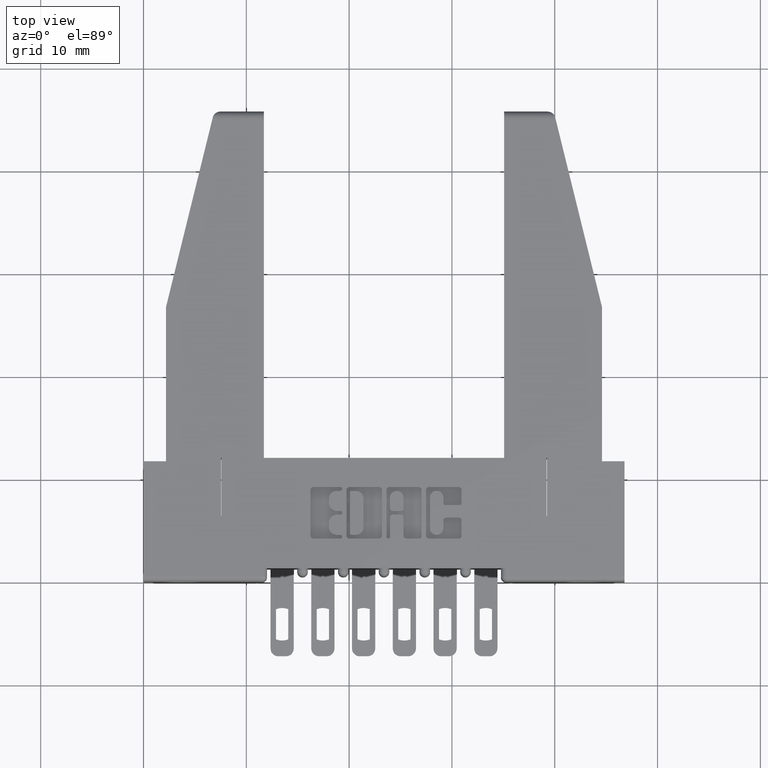
[diagram: clean part render]
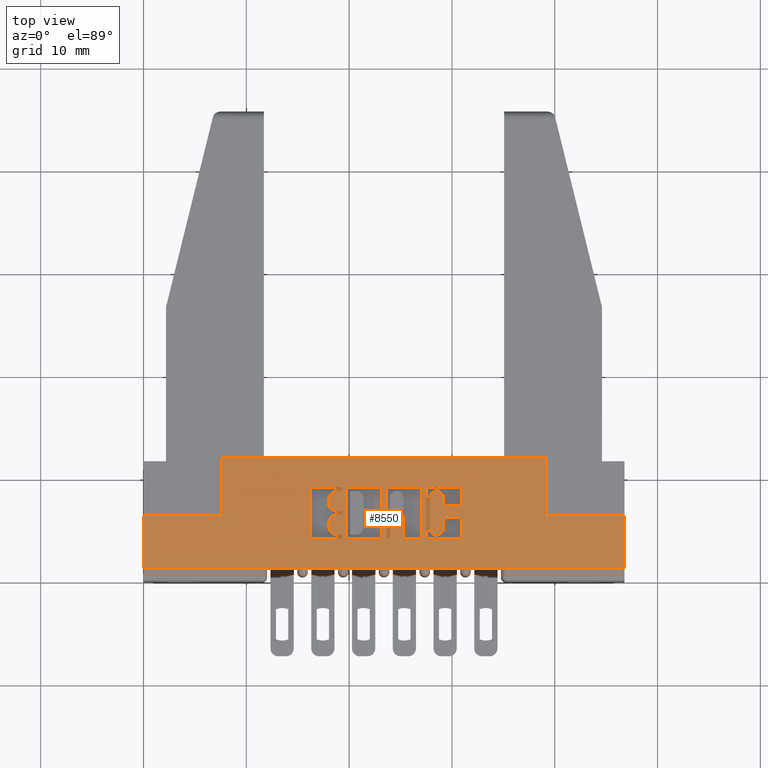
[diagram: same view with one face highlighted and labeled with its STEP entity id]
A machine part, top view. The second image highlights one B-rep face of the part: STEP entity #8550.
In plain terms, the highlighted planar face has unit normal (0, 0, -1).
Its self-contained STEP definition (entity closure, byte-faithful):
#1 = VECTOR ( 'NONE', #3861, 39.37007874015748100 ) ;
#15 = DIRECTION ( 'NONE',  ( -0.0000000000000000000, 0.0000000000000000000, 1.000000000000000000 ) ) ;
#39 = CIRCLE ( 'NONE', #3058, 0.03141014465217454400 ) ;
#63 = VERTEX_POINT ( 'NONE', #4341 ) ;
#64 = DIRECTION ( 'NONE',  ( 1.000000000000000000, 0.0000000000000000000, 0.0000000000000000000 ) ) ;
#69 = CARTESIAN_POINT ( 'NONE',  ( 0.7541336065353516600, 0.3464147637527356100, 0.0000000000000000000 ) ) ;
#77 = CARTESIAN_POINT ( 'NONE',  ( 1.055229290037014200, 0.3601567020380065400, 0.0000000000000000000 ) ) ;
#86 = ORIENTED_EDGE ( 'NONE', *, *, #10736, .F. ) ;
#88 = ORIENTED_EDGE ( 'NONE', *, *, #423, .F. ) ;
#108 = CARTESIAN_POINT ( 'NONE',  ( 0.7406370600050843400, 0.2237188862052004700, 0.0000000000000000000 ) ) ;
#148 = ORIENTED_EDGE ( 'NONE', *, *, #11169, .F. ) ;
#150 = CARTESIAN_POINT ( 'NONE',  ( 0.7092269153529097100, 0.3002811137948582800, 0.0000000000000000000 ) ) ;
#180 = CARTESIAN_POINT ( 'NONE',  ( 0.7769550397591695700, 0.0000000000000000000, 0.0000000000000000000 ) ) ;
#246 = ORIENTED_EDGE ( 'NONE', *, *, #1739, .F. ) ;
#247 = CARTESIAN_POINT ( 'NONE',  ( 0.9531463199174504700, 0.2453133606535455300, 0.0000000000000000000 ) ) ;
#263 = CARTESIAN_POINT ( 'NONE',  ( 0.9295887114283312200, 0.3503410318342100000, 0.0000000000000000000 ) ) ;
#286 = CIRCLE ( 'NONE', #11135, 0.02625691779518022500 ) ;
#293 = ORIENTED_EDGE ( 'NONE', *, *, #10682, .F. ) ;
#295 = VECTOR ( 'NONE', #8441, 39.37007874015748100 ) ;
#301 = CIRCLE ( 'NONE', #998, 0.009815670203796237100 ) ;
#330 = VECTOR ( 'NONE', #64, 39.37007874015748100 ) ;
#341 = VECTOR ( 'NONE', #5720, 39.37007874015748100 ) ;
#354 = CARTESIAN_POINT ( 'NONE',  ( 0.7541336065353102500, 0.2620000000000202700, 0.0000000000000000000 ) ) ;
#379 = LINE ( 'NONE', #9353, #10522 ) ;
#394 = CARTESIAN_POINT ( 'NONE',  ( 1.082222383097458900, 0.0000000000000000000, 0.0000000000000000000 ) ) ;
#405 = EDGE_CURVE ( 'NONE', #894, #3457, #3670, .T. ) ;
#423 = EDGE_CURVE ( 'NONE', #8359, #5198, #4515, .T. ) ;
#473 = CARTESIAN_POINT ( 'NONE',  ( -0.0000000000000000000, 0.2909562271012335900, 0.0000000000000000000 ) ) ;
#478 = VERTEX_POINT ( 'NONE', #5847 ) ;
#505 = EDGE_CURVE ( 'NONE', #9225, #8333, #4386, .T. ) ;
#515 = VERTEX_POINT ( 'NONE', #11560 ) ;
#526 = EDGE_CURVE ( 'NONE', #7064, #5642, #3958, .T. ) ;
#536 = LINE ( 'NONE', #2013, #7632 ) ;
#576 = AXIS2_PLACEMENT_3D ( 'NONE', #4195, #5265, #7120 ) ;
#605 = ORIENTED_EDGE ( 'NONE', *, *, #4342, .F. ) ;
#696 = CARTESIAN_POINT ( 'NONE',  ( 0.9531463199174504700, 0.2551290308573486200, 0.0000000000000000000 ) ) ;
#711 = CARTESIAN_POINT ( 'NONE',  ( 1.095964321382818700, 0.3201578459575295000, 0.0000000000000000000 ) ) ;
#723 = DIRECTION ( 'NONE',  ( -0.0000000000000000000, 0.0000000000000000000, 1.000000000000000000 ) ) ;
#735 = DIRECTION ( 'NONE',  ( -0.0000000000000000000, -1.000000000000000000, -0.0000000000000000000 ) ) ;
#764 = CARTESIAN_POINT ( 'NONE',  ( 1.217678631909972400, 0.0000000000000000000, 0.0000000000000000000 ) ) ;
#770 = DIRECTION ( 'NONE',  ( 1.000000000000000000, 0.0000000000000000000, 0.0000000000000000000 ) ) ;
#787 = DIRECTION ( 'NONE',  ( 1.000000000000000000, 0.0000000000000000000, 0.0000000000000000000 ) ) ;
#817 = ORIENTED_EDGE ( 'NONE', *, *, #1507, .F. ) ;
#831 = EDGE_CURVE ( 'NONE', #9751, #8333, #7861, .T. ) ;
#845 = DIRECTION ( 'NONE',  ( -0.0000000000000000000, 0.0000000000000000000, 1.000000000000000000 ) ) ;
#894 = VERTEX_POINT ( 'NONE', #11149 ) ;
#902 = DIRECTION ( 'NONE',  ( 0.0000000000000000000, -1.000000000000000000, 0.0000000000000000000 ) ) ;
#998 = AXIS2_PLACEMENT_3D ( 'NONE', #8274, #7165, #787 ) ;
#1002 = VERTEX_POINT ( 'NONE', #2892 ) ;
#1036 = VERTEX_POINT ( 'NONE', #263 ) ;
#1062 = CARTESIAN_POINT ( 'NONE',  ( 1.082222383097458900, 0.3503410318342100000, 0.0000000000000000000 ) ) ;
#1064 = CARTESIAN_POINT ( 'NONE',  ( 0.6400264404161156700, 0.3503410318342100000, 0.0000000000000000000 ) ) ;
#1072 = VECTOR ( 'NONE', #7100, 39.37007874015748100 ) ;
#1080 = CIRCLE ( 'NONE', #2582, 0.009815670203805798900 ) ;
#1100 = ORIENTED_EDGE ( 'NONE', *, *, #11801, .F. ) ;
#1104 = DIRECTION ( 'NONE',  ( -0.0000000000000000000, 0.0000000000000000000, 1.000000000000000000 ) ) ;
#1109 = CARTESIAN_POINT ( 'NONE',  ( 0.0000000000000000000, 0.3601567020380510000, 0.0000000000000000000 ) ) ;
#1184 = VECTOR ( 'NONE', #4331, 39.37007874015748100 ) ;
#1186 = DIRECTION ( 'NONE',  ( -0.0000000000000000000, 0.0000000000000000000, 1.000000000000000000 ) ) ;
#1197 = VECTOR ( 'NONE', #5762, 39.37007874015748100 ) ;
#1202 = CARTESIAN_POINT ( 'NONE',  ( 1.095964321382818700, 0.0000000000000000000, 0.0000000000000000000 ) ) ;
#1235 = CARTESIAN_POINT ( 'NONE',  ( 0.2979999999999998800, 0.4729999999999999800, 0.0000000000000000000 ) ) ;
#1246 = LINE ( 'NONE', #1938, #10806 ) ;
#1326 = CARTESIAN_POINT ( 'NONE',  ( 0.9124112885716693100, 0.1736589681657899100, 0.0000000000000000000 ) ) ;
#1359 = CARTESIAN_POINT ( 'NONE',  ( 1.207862961706168700, 0.3601567020380510000, 0.0000000000000000000 ) ) ;
#1380 = EDGE_CURVE ( 'NONE', #8781, #7950, #10732, .T. ) ;
#1473 = EDGE_CURVE ( 'NONE', #3224, #5875, #4934, .T. ) ;
#1486 = ORIENTED_EDGE ( 'NONE', *, *, #8048, .F. ) ;
#1503 = ORIENTED_EDGE ( 'NONE', *, *, #2270, .T. ) ;
#1504 = VERTEX_POINT ( 'NONE', #150 ) ;
#1505 = CARTESIAN_POINT ( 'NONE',  ( 1.148478156973166100, 0.0000000000000000000, 0.0000000000000000000 ) ) ;
#1507 = EDGE_CURVE ( 'NONE', #7143, #4625, #9580, .T. ) ;
#1513 = CARTESIAN_POINT ( 'NONE',  ( 0.7541336064153890700, 0.2551290308573567800, 0.0000000000000000000 ) ) ;
#1515 = AXIS2_PLACEMENT_3D ( 'NONE', #1542, #9091, #770 ) ;
#1542 = CARTESIAN_POINT ( 'NONE',  ( 0.7541336065353357900, 0.1707142671046479000, 0.0000000000000000000 ) ) ;
#1566 = CIRCLE ( 'NONE', #2206, 0.009815670203822599700 ) ;
#1574 = VECTOR ( 'NONE', #1804, 39.37007874015748100 ) ;
#1585 = CARTESIAN_POINT ( 'NONE',  ( 0.0000000000000000000, 0.2499999999999999700, 0.0000000000000000000 ) ) ;
#1591 = DIRECTION ( 'NONE',  ( -0.0000000000000000000, 0.0000000000000000000, 1.000000000000000000 ) ) ;
#1613 = CARTESIAN_POINT ( 'NONE',  ( 1.158293827176977600, 0.2909562271012335900, 0.0000000000000000000 ) ) ;
#1639 = VERTEX_POINT ( 'NONE', #1513 ) ;
#1653 = LINE ( 'NONE', #3152, #4982 ) ;
#1666 = CARTESIAN_POINT ( 'NONE',  ( 1.158293827176967400, 0.2433502266127574900, 0.0000000000000000000 ) ) ;
#1679 = LINE ( 'NONE', #1202, #3138 ) ;
#1691 = DIRECTION ( 'NONE',  ( -1.000000000000000000, -0.0000000000000000000, -7.017285087388212900E-023 ) ) ;
#1728 = DIRECTION ( 'NONE',  ( -1.000000000000000000, -3.427012734660361200E-014, 0.0000000000000000000 ) ) ;
#1739 = EDGE_CURVE ( 'NONE', #6816, #1639, #11901, .T. ) ;
#1757 = EDGE_CURVE ( 'NONE', #3457, #5623, #11308, .T. ) ;
#1766 = DIRECTION ( 'NONE',  ( 1.000000000000000000, 0.0000000000000000000, 0.0000000000000000000 ) ) ;
#1778 = CIRCLE ( 'NONE', #5995, 0.009815670203788042300 ) ;
#1779 = ORIENTED_EDGE ( 'NONE', *, *, #2825, .T. ) ;
#1784 = DIRECTION ( 'NONE',  ( 0.0000000000000000000, 1.000000000000000000, -0.0000000000000000000 ) ) ;
#1790 = AXIS2_PLACEMENT_3D ( 'NONE', #2309, #11440, #7835 ) ;
#1799 = DIRECTION ( 'NONE',  ( 1.000000000000000000, 0.0000000000000000000, 0.0000000000000000000 ) ) ;
#1804 = DIRECTION ( 'NONE',  ( 1.000000000000000000, 0.0000000000000000000, 0.0000000000000000000 ) ) ;
#1833 = VERTEX_POINT ( 'NONE', #3464 ) ;
#1857 = LINE ( 'NONE', #2185, #8950 ) ;
#1859 = VERTEX_POINT ( 'NONE', #11695 ) ;
#1868 = DIRECTION ( 'NONE',  ( 1.000000000000000000, 0.0000000000000000000, 0.0000000000000000000 ) ) ;
#1932 = VERTEX_POINT ( 'NONE', #9356 ) ;
#1938 = CARTESIAN_POINT ( 'NONE',  ( 0.0000000000000000000, 0.3601567020380510000, 0.0000000000000000000 ) ) ;
#1946 = CARTESIAN_POINT ( 'NONE',  ( -0.0000000000000000000, 0.1638432979619831300, 0.0000000000000000000 ) ) ;
#1947 = FACE_BOUND ( 'NONE', #8381, .T. ) ;
#1976 = DIRECTION ( 'NONE',  ( 1.000000000000000000, 0.0000000000000000000, 0.0000000000000000000 ) ) ;
#1990 = CARTESIAN_POINT ( 'NONE',  ( 0.9295887114283312200, 0.1707142671046479000, 0.0000000000000000000 ) ) ;
#2013 = CARTESIAN_POINT ( 'NONE',  ( 0.0000000000000000000, 0.3601567020380326800, 0.0000000000000000000 ) ) ;
#2031 = CIRCLE ( 'NONE', #6491, 0.03141014465215624000 ) ;
#2093 = CARTESIAN_POINT ( 'NONE',  ( 0.7092269153529097100, 0.0000000000000000000, 0.0000000000000000000 ) ) ;
#2102 = ORIENTED_EDGE ( 'NONE', *, *, #2538, .F. ) ;
#2107 = CARTESIAN_POINT ( 'NONE',  ( 1.544000000000000700, 0.4729999999999999800, 0.0000000000000000000 ) ) ;
#2137 = CARTESIAN_POINT ( 'NONE',  ( -1.072942192934067400E-015, 0.1638432979619806600, 0.0000000000000000000 ) ) ;
#2146 = CARTESIAN_POINT ( 'NONE',  ( 0.9433306497136472200, 0.0000000000000000000, 0.0000000000000000000 ) ) ;
#2161 = DIRECTION ( 'NONE',  ( -0.0000000000000000000, 0.0000000000000000000, 1.000000000000000000 ) ) ;
#2185 = CARTESIAN_POINT ( 'NONE',  ( 0.9124112885716693100, 0.0000000000000000000, 0.0000000000000000000 ) ) ;
#2206 = AXIS2_PLACEMENT_3D ( 'NONE', #3946, #1186, #9483 ) ;
#2209 = ORIENTED_EDGE ( 'NONE', *, *, #9869, .F. ) ;
#2217 = LINE ( 'NONE', #9158, #5259 ) ;
#2227 = CARTESIAN_POINT ( 'NONE',  ( -0.0000000000000000000, 0.2551290308573567800, 0.0000000000000000000 ) ) ;
#2245 = FACE_BOUND ( 'NONE', #4204, .T. ) ;
#2250 = DIRECTION ( 'NONE',  ( 1.000000000000000000, 6.548587621710595000E-015, 0.0000000000000000000 ) ) ;
#2252 = ORIENTED_EDGE ( 'NONE', *, *, #6804, .F. ) ;
#2264 = PLANE ( 'NONE',  #8459 ) ;
#2270 = EDGE_CURVE ( 'NONE', #10447, #10559, #3196, .T. ) ;
#2284 = AXIS2_PLACEMENT_3D ( 'NONE', #8773, #8167, #11939 ) ;
#2294 = EDGE_CURVE ( 'NONE', #3735, #8912, #8693, .T. ) ;
#2296 = VECTOR ( 'NONE', #8555, 39.37007874015748100 ) ;
#2309 = CARTESIAN_POINT ( 'NONE',  ( 1.207862961706153400, 0.2335345564089703600, 0.0000000000000000000 ) ) ;
#2333 = EDGE_CURVE ( 'NONE', #3224, #63, #10849, .T. ) ;
#2352 = DIRECTION ( 'NONE',  ( 1.000000000000000000, 0.0000000000000000000, 0.0000000000000000000 ) ) ;
#2401 = CARTESIAN_POINT ( 'NONE',  ( 1.158293827176977600, 0.3007718973050451700, 0.0000000000000000000 ) ) ;
#2443 = VECTOR ( 'NONE', #10098, 39.37007874015748100 ) ;
#2445 = EDGE_CURVE ( 'NONE', #3013, #1859, #9844, .T. ) ;
#2452 = CARTESIAN_POINT ( 'NONE',  ( -0.0000000000000000000, 0.3464147637527356100, 0.0000000000000000000 ) ) ;
#2457 = CARTESIAN_POINT ( 'NONE',  ( 0.0000000000000000000, 0.2688709691426837700, 0.0000000000000000000 ) ) ;
#2538 = EDGE_CURVE ( 'NONE', #3198, #5581, #10148, .T. ) ;
#2578 = CARTESIAN_POINT ( 'NONE',  ( -8.743304377295779200E-015, 0.2551290308573159200, 0.0000000000000000000 ) ) ;
#2579 = DIRECTION ( 'NONE',  ( 1.000000000000000000, 0.0000000000000000000, 0.0000000000000000000 ) ) ;
#2582 = AXIS2_PLACEMENT_3D ( 'NONE', #4060, #2993, #9464 ) ;
#2616 = AXIS2_PLACEMENT_3D ( 'NONE', #8956, #3345, #7285 ) ;
#2673 = ORIENTED_EDGE ( 'NONE', *, *, #8957, .F. ) ;
#2710 = CIRCLE ( 'NONE', #3966, 0.009815670203796511200 ) ;
#2731 = AXIS2_PLACEMENT_3D ( 'NONE', #3688, #10088, #4799 ) ;
#2749 = AXIS2_PLACEMENT_3D ( 'NONE', #6738, #2161, #9614 ) ;
#2825 = EDGE_CURVE ( 'NONE', #10559, #3013, #7955, .T. ) ;
#2864 = ORIENTED_EDGE ( 'NONE', *, *, #11621, .F. ) ;
#2877 = DIRECTION ( 'NONE',  ( -0.0000000000000000000, 0.0000000000000000000, 1.000000000000000000 ) ) ;
#2881 = EDGE_CURVE ( 'NONE', #10398, #3587, #9095, .T. ) ;
#2892 = CARTESIAN_POINT ( 'NONE',  ( 0.7092269153529097100, 0.3150046191005197400, 0.0000000000000000000 ) ) ;
#2911 = ORIENTED_EDGE ( 'NONE', *, *, #405, .F. ) ;
#2993 = DIRECTION ( 'NONE',  ( -0.0000000000000000000, 0.0000000000000000000, 1.000000000000000000 ) ) ;
#3007 = ORIENTED_EDGE ( 'NONE', *, *, #11669, .F. ) ;
#3013 = VERTEX_POINT ( 'NONE', #8490 ) ;
#3031 = DIRECTION ( 'NONE',  ( 0.0000000000000000000, 1.000000000000000000, -0.0000000000000000000 ) ) ;
#3033 = LINE ( 'NONE', #4534, #6484 ) ;
#3050 = DIRECTION ( 'NONE',  ( -0.0000000000000000000, 0.0000000000000000000, 1.000000000000000000 ) ) ;
#3053 = ORIENTED_EDGE ( 'NONE', *, *, #1757, .F. ) ;
#3058 = AXIS2_PLACEMENT_3D ( 'NONE', #6566, #9183, #6604 ) ;
#3060 = CARTESIAN_POINT ( 'NONE',  ( 0.6400264404161156700, 0.0000000000000000000, 0.0000000000000000000 ) ) ;
#3083 = EDGE_CURVE ( 'NONE', #6829, #9136, #3450, .T. ) ;
#3097 = CARTESIAN_POINT ( 'NONE',  ( 0.6498421106199189200, 0.1638432979619849400, 0.0000000000000000000 ) ) ;
#3112 = EDGE_CURVE ( 'NONE', #5537, #5991, #8804, .T. ) ;
#3123 = AXIS2_PLACEMENT_3D ( 'NONE', #11862, #723, #10837 ) ;
#3126 = FACE_OUTER_BOUND ( 'NONE', #7316, .T. ) ;
#3138 = VECTOR ( 'NONE', #3031, 39.37007874015748100 ) ;
#3152 = CARTESIAN_POINT ( 'NONE',  ( 0.2979999999999999900, 0.2499999999999999700, 0.0000000000000000000 ) ) ;
#3156 = DIRECTION ( 'NONE',  ( 0.0000000000000000000, 1.000000000000000000, -0.0000000000000000000 ) ) ;
#3196 = LINE ( 'NONE', #2578, #3478 ) ;
#3198 = VERTEX_POINT ( 'NONE', #1359 ) ;
#3224 = VERTEX_POINT ( 'NONE', #11645 ) ;
#3247 = LINE ( 'NONE', #3060, #9899 ) ;
#3320 = ORIENTED_EDGE ( 'NONE', *, *, #6299, .F. ) ;
#3339 = LINE ( 'NONE', #9108, #11896 ) ;
#3345 = DIRECTION ( 'NONE',  ( -0.0000000000000000000, 0.0000000000000000000, 1.000000000000000000 ) ) ;
#3380 = EDGE_CURVE ( 'NONE', #3453, #4625, #286, .T. ) ;
#3398 = LINE ( 'NONE', #9824, #7890 ) ;
#3403 = VERTEX_POINT ( 'NONE', #6409 ) ;
#3429 = EDGE_CURVE ( 'NONE', #7094, #10248, #3033, .T. ) ;
#3430 = DIRECTION ( 'NONE',  ( -0.0000000000000000000, 0.0000000000000000000, 1.000000000000000000 ) ) ;
#3450 = CIRCLE ( 'NONE', #10300, 0.009815670203806891800 ) ;
#3453 = VERTEX_POINT ( 'NONE', #3744 ) ;
#3457 = VERTEX_POINT ( 'NONE', #10266 ) ;
#3464 = CARTESIAN_POINT ( 'NONE',  ( 0.7406370600051257500, 0.3464147637527356100, 0.0000000000000000000 ) ) ;
#3478 = VECTOR ( 'NONE', #1728, 39.37007874015748100 ) ;
#3523 = CARTESIAN_POINT ( 'NONE',  ( 1.207862961706132300, 0.3503410318342108900, 0.0000000000000000000 ) ) ;
#3535 = ORIENTED_EDGE ( 'NONE', *, *, #8321, .F. ) ;
#3540 = EDGE_CURVE ( 'NONE', #9457, #4879, #10840, .T. ) ;
#3551 = CIRCLE ( 'NONE', #7793, 0.009815670203840084000 ) ;
#3565 = DIRECTION ( 'NONE',  ( -1.000000000000000000, 0.0000000000000000000, 0.0000000000000000000 ) ) ;
#3567 = CARTESIAN_POINT ( 'NONE',  ( -0.0000000000000000000, 0.3601567020380065400, 0.0000000000000000000 ) ) ;
#3572 = AXIS2_PLACEMENT_3D ( 'NONE', #3725, #3603, #1799 ) ;
#3580 = CIRCLE ( 'NONE', #7688, 0.009815670203795690700 ) ;
#3587 = VERTEX_POINT ( 'NONE', #4813 ) ;
#3598 = EDGE_CURVE ( 'NONE', #4717, #5445, #1566, .T. ) ;
#3603 = DIRECTION ( 'NONE',  ( -0.0000000000000000000, 0.0000000000000000000, 1.000000000000000000 ) ) ;
#3640 = CARTESIAN_POINT ( 'NONE',  ( 0.7541336065353515500, 0.3532857328953861700, 0.0000000000000000000 ) ) ;
#3643 = EDGE_CURVE ( 'NONE', #9136, #478, #1857, .T. ) ;
#3658 = LINE ( 'NONE', #1585, #1184 ) ;
#3670 = LINE ( 'NONE', #180, #1197 ) ;
#3671 = LINE ( 'NONE', #6473, #8723 ) ;
#3688 = CARTESIAN_POINT ( 'NONE',  ( 1.005660155507788200, 0.1736589681657878000, 0.0000000000000000000 ) ) ;
#3725 = CARTESIAN_POINT ( 'NONE',  ( 1.092038053301265700, 0.1736589681657899100, 0.0000000000000000000 ) ) ;
#3731 = ORIENTED_EDGE ( 'NONE', *, *, #1473, .T. ) ;
#3735 = VERTEX_POINT ( 'NONE', #8857 ) ;
#3744 = CARTESIAN_POINT ( 'NONE',  ( 1.095964321382818700, 0.2038421540424529300, 0.0000000000000000000 ) ) ;
#3793 = DIRECTION ( 'NONE',  ( -0.0000000000000000000, 0.0000000000000000000, 1.000000000000000000 ) ) ;
#3803 = VERTEX_POINT ( 'NONE', #6882 ) ;
#3811 = CARTESIAN_POINT ( 'NONE',  ( 0.2979999999999999900, 0.2499999999999999700, 0.0000000000000000000 ) ) ;
#3826 = CARTESIAN_POINT ( 'NONE',  ( 1.842000000000000700, 0.4729999999999999800, 0.0000000000000000000 ) ) ;
#3829 = LINE ( 'NONE', #10913, #1072 ) ;
#3849 = VECTOR ( 'NONE', #902, 39.37007874015748100 ) ;
#3861 = DIRECTION ( 'NONE',  ( 0.0000000000000000000, 1.000000000000000000, -0.0000000000000000000 ) ) ;
#3884 = ORIENTED_EDGE ( 'NONE', *, *, #2333, .F. ) ;
#3935 = VERTEX_POINT ( 'NONE', #7113 ) ;
#3946 = CARTESIAN_POINT ( 'NONE',  ( 0.6498421106199383500, 0.3503410318342100000, 0.0000000000000000000 ) ) ;
#3958 = CIRCLE ( 'NONE', #1790, 0.009815670203787086500 ) ;
#3966 = AXIS2_PLACEMENT_3D ( 'NONE', #11550, #10645, #6950 ) ;
#3996 = ORIENTED_EDGE ( 'NONE', *, *, #11109, .T. ) ;
#4021 = LINE ( 'NONE', #2452, #11098 ) ;
#4024 = AXIS2_PLACEMENT_3D ( 'NONE', #2401, #845, #5280 ) ;
#4060 = CARTESIAN_POINT ( 'NONE',  ( 0.6498421106199224800, 0.1736589681657899100, 0.0000000000000000000 ) ) ;
#4089 = CIRCLE ( 'NONE', #4024, 0.009815670203811535700 ) ;
#4118 = ORIENTED_EDGE ( 'NONE', *, *, #8204, .T. ) ;
#4119 = EDGE_CURVE ( 'NONE', #1833, #1002, #6618, .T. ) ;
#4132 = LINE ( 'NONE', #473, #5867 ) ;
#4195 = CARTESIAN_POINT ( 'NONE',  ( 0.7867707099630104600, 0.3503410318342100000, 0.0000000000000000000 ) ) ;
#4204 = EDGE_LOOP ( 'NONE', ( #2864, #8927, #10277, #4738, #3053, #2911, #10334, #11824 ) ) ;
#4248 = CIRCLE ( 'NONE', #576, 0.009815670203840902800 ) ;
#4270 = ORIENTED_EDGE ( 'NONE', *, *, #3540, .F. ) ;
#4311 = CARTESIAN_POINT ( 'NONE',  ( 1.207862961706167400, 0.3007718973050385600, 0.0000000000000000000 ) ) ;
#4326 = ORIENTED_EDGE ( 'NONE', *, *, #10551, .F. ) ;
#4331 = DIRECTION ( 'NONE',  ( 1.000000000000000000, -0.0000000000000000000, 0.0000000000000000000 ) ) ;
#4339 = CARTESIAN_POINT ( 'NONE',  ( 1.207862961706156900, 0.2433502266127574900, 0.0000000000000000000 ) ) ;
#4341 = CARTESIAN_POINT ( 'NONE',  ( 0.7092269153529280300, 0.2237188862052004700, 0.0000000000000000000 ) ) ;
#4342 = EDGE_CURVE ( 'NONE', #11666, #5693, #8505, .T. ) ;
#4343 = LINE ( 'NONE', #11097, #1 ) ;
#4359 = DIRECTION ( 'NONE',  ( 1.000000000000000000, 0.0000000000000000000, 0.0000000000000000000 ) ) ;
#4366 = VECTOR ( 'NONE', #7137, 39.37007874015748100 ) ;
#4386 = LINE ( 'NONE', #8521, #6975 ) ;
#4409 = ORIENTED_EDGE ( 'NONE', *, *, #11131, .T. ) ;
#4413 = ORIENTED_EDGE ( 'NONE', *, *, #6624, .T. ) ;
#4468 = CARTESIAN_POINT ( 'NONE',  ( 1.122221239177992400, 0.3201578459575295000, 0.0000000000000000000 ) ) ;
#4512 = EDGE_CURVE ( 'NONE', #3587, #4643, #4089, .T. ) ;
#4515 = LINE ( 'NONE', #3826, #10337 ) ;
#4534 = CARTESIAN_POINT ( 'NONE',  ( 0.9958444853039849500, 0.0000000000000000000, 0.0000000000000000000 ) ) ;
#4540 = CIRCLE ( 'NONE', #2731, 0.009815670203803340800 ) ;
#4542 = DIRECTION ( 'NONE',  ( -0.0000000000000000000, 0.0000000000000000000, 1.000000000000000000 ) ) ;
#4544 = CARTESIAN_POINT ( 'NONE',  ( 0.7610045756779980600, 0.1707142671046479000, 0.0000000000000000000 ) ) ;
#4572 = CARTESIAN_POINT ( 'NONE',  ( 1.122221239177999100, 0.2038421540424529300, 0.0000000000000000000 ) ) ;
#4590 = EDGE_CURVE ( 'NONE', #8149, #1932, #11174, .T. ) ;
#4600 = DIRECTION ( 'NONE',  ( -0.0000000000000000000, 0.0000000000000000000, 1.000000000000000000 ) ) ;
#4602 = AXIS2_PLACEMENT_3D ( 'NONE', #3640, #4542, #11028 ) ;
#4606 = CARTESIAN_POINT ( 'NONE',  ( 0.7406370600051257500, 0.3150046191005197400, 0.0000000000000000000 ) ) ;
#4625 = VERTEX_POINT ( 'NONE', #6266 ) ;
#4643 = VERTEX_POINT ( 'NONE', #1613 ) ;
#4672 = VERTEX_POINT ( 'NONE', #69 ) ;
#4698 = EDGE_CURVE ( 'NONE', #6816, #63, #2031, .T. ) ;
#4717 = VERTEX_POINT ( 'NONE', #9284 ) ;
#4738 = ORIENTED_EDGE ( 'NONE', *, *, #11547, .F. ) ;
#4742 = DIRECTION ( 'NONE',  ( 0.0000000000000000000, -1.000000000000000000, 0.0000000000000000000 ) ) ;
#4795 = ORIENTED_EDGE ( 'NONE', *, *, #3112, .F. ) ;
#4799 = DIRECTION ( 'NONE',  ( 1.000000000000000000, 0.0000000000000000000, 0.0000000000000000000 ) ) ;
#4813 = CARTESIAN_POINT ( 'NONE',  ( 1.148478156973166100, 0.3007718973050451700, 0.0000000000000000000 ) ) ;
#4822 = DIRECTION ( 'NONE',  ( -0.0000000000000000000, -1.000000000000000000, -0.0000000000000000000 ) ) ;
#4879 = VERTEX_POINT ( 'NONE', #11409 ) ;
#4933 = DIRECTION ( 'NONE',  ( -1.000000000000000000, 0.0000000000000000000, 0.0000000000000000000 ) ) ;
#4934 = CIRCLE ( 'NONE', #9804, 0.03141014465218178200 ) ;
#4982 = VECTOR ( 'NONE', #11419, 39.37007874015748100 ) ;
#5159 = CIRCLE ( 'NONE', #3572, 0.009815670203806754800 ) ;
#5172 = DIRECTION ( 'NONE',  ( 0.0000000000000000000, -1.000000000000000000, 0.0000000000000000000 ) ) ;
#5198 = VERTEX_POINT ( 'NONE', #7994 ) ;
#5221 = CARTESIAN_POINT ( 'NONE',  ( 0.7541336064154146000, 0.1638432979619856000, 0.0000000000000000000 ) ) ;
#5228 = DIRECTION ( 'NONE',  ( 1.000000000000000000, 0.0000000000000000000, 0.0000000000000000000 ) ) ;
#5231 = EDGE_CURVE ( 'NONE', #9225, #8359, #3339, .T. ) ;
#5233 = DIRECTION ( 'NONE',  ( -0.0000000000000000000, 0.0000000000000000000, 1.000000000000000000 ) ) ;
#5247 = EDGE_CURVE ( 'NONE', #3403, #10234, #301, .T. ) ;
#5249 = ORIENTED_EDGE ( 'NONE', *, *, #4512, .F. ) ;
#5259 = VECTOR ( 'NONE', #11156, 39.37007874015748100 ) ;
#5265 = DIRECTION ( 'NONE',  ( -0.0000000000000000000, 0.0000000000000000000, 1.000000000000000000 ) ) ;
#5280 = DIRECTION ( 'NONE',  ( 1.000000000000000000, 0.0000000000000000000, 0.0000000000000000000 ) ) ;
#5287 = LINE ( 'NONE', #6445, #3849 ) ;
#5376 = CARTESIAN_POINT ( 'NONE',  ( 1.055229290037011900, 0.3503410318342102800, 0.0000000000000000000 ) ) ;
#5390 = EDGE_CURVE ( 'NONE', #11589, #1036, #4343, .T. ) ;
#5406 = CIRCLE ( 'NONE', #6313, 0.009815670203806345400 ) ;
#5445 = VERTEX_POINT ( 'NONE', #1064 ) ;
#5447 = VECTOR ( 'NONE', #2250, 39.37007874015748100 ) ;
#5451 = DIRECTION ( 'NONE',  ( -0.0000000000000000000, 0.0000000000000000000, 1.000000000000000000 ) ) ;
#5510 = DIRECTION ( 'NONE',  ( 1.000000000000000000, 0.0000000000000000000, 0.0000000000000000000 ) ) ;
#5537 = VERTEX_POINT ( 'NONE', #10417 ) ;
#5560 = ORIENTED_EDGE ( 'NONE', *, *, #6154, .F. ) ;
#5581 = VERTEX_POINT ( 'NONE', #8022 ) ;
#5590 = ORIENTED_EDGE ( 'NONE', *, *, #5863, .F. ) ;
#5623 = VERTEX_POINT ( 'NONE', #8942 ) ;
#5642 = VERTEX_POINT ( 'NONE', #4339 ) ;
#5649 = DIRECTION ( 'NONE',  ( 1.000000000000000000, 0.0000000000000000000, 0.0000000000000000000 ) ) ;
#5674 = ORIENTED_EDGE ( 'NONE', *, *, #5390, .T. ) ;
#5693 = VERTEX_POINT ( 'NONE', #5221 ) ;
#5720 = DIRECTION ( 'NONE',  ( 1.000000000000000000, 0.0000000000000000000, 0.0000000000000000000 ) ) ;
#5731 = ORIENTED_EDGE ( 'NONE', *, *, #831, .F. ) ;
#5755 = CARTESIAN_POINT ( 'NONE',  ( 1.842000000000000700, 0.2499999999999999700, 0.0000000000000000000 ) ) ;
#5762 = DIRECTION ( 'NONE',  ( 0.0000000000000000000, -1.000000000000000000, 0.0000000000000000000 ) ) ;
#5766 = VERTEX_POINT ( 'NONE', #11980 ) ;
#5768 = VERTEX_POINT ( 'NONE', #7511 ) ;
#5780 = ORIENTED_EDGE ( 'NONE', *, *, #10109, .T. ) ;
#5847 = CARTESIAN_POINT ( 'NONE',  ( 0.9124112885716693100, 0.3503410318342100000, 0.0000000000000000000 ) ) ;
#5851 = DIRECTION ( 'NONE',  ( 0.0000000000000000000, -1.000000000000000000, 0.0000000000000000000 ) ) ;
#5863 = EDGE_CURVE ( 'NONE', #11589, #1859, #6796, .T. ) ;
#5867 = VECTOR ( 'NONE', #8881, 39.37007874015748100 ) ;
#5875 = VERTEX_POINT ( 'NONE', #11878 ) ;
#5990 = CIRCLE ( 'NONE', #1515, 0.006870969142662229500 ) ;
#5991 = VERTEX_POINT ( 'NONE', #7591 ) ;
#5995 = AXIS2_PLACEMENT_3D ( 'NONE', #10660, #6045, #5228 ) ;
#5998 = DIRECTION ( 'NONE',  ( -1.000000000000000000, 0.0000000000000000000, -0.0000000000000000000 ) ) ;
#6017 = DIRECTION ( 'NONE',  ( -1.000000000000000000, 0.0000000000000000000, 0.0000000000000000000 ) ) ;
#6027 = ORIENTED_EDGE ( 'NONE', *, *, #7506, .F. ) ;
#6045 = DIRECTION ( 'NONE',  ( -0.0000000000000000000, 0.0000000000000000000, 1.000000000000000000 ) ) ;
#6132 = VERTEX_POINT ( 'NONE', #6784 ) ;
#6154 = EDGE_CURVE ( 'NONE', #10090, #7616, #9092, .T. ) ;
#6177 = ORIENTED_EDGE ( 'NONE', *, *, #7906, .F. ) ;
#6207 = ORIENTED_EDGE ( 'NONE', *, *, #1380, .F. ) ;
#6210 = CARTESIAN_POINT ( 'NONE',  ( 1.217678631909972400, 0.3007718973050385600, 0.0000000000000000000 ) ) ;
#6266 = CARTESIAN_POINT ( 'NONE',  ( 1.148478156973179200, 0.2038421540424529300, 0.0000000000000000000 ) ) ;
#6280 = CIRCLE ( 'NONE', #3123, 0.006870969142663458500 ) ;
#6293 = VECTOR ( 'NONE', #3156, 39.37007874015748100 ) ;
#6299 = EDGE_CURVE ( 'NONE', #4672, #8781, #10836, .T. ) ;
#6306 = FACE_BOUND ( 'NONE', #9155, .T. ) ;
#6313 = AXIS2_PLACEMENT_3D ( 'NONE', #8259, #4600, #2579 ) ;
#6409 = CARTESIAN_POINT ( 'NONE',  ( 1.055229290037010800, 0.1638432979619845200, 0.0000000000000000000 ) ) ;
#6445 = CARTESIAN_POINT ( 'NONE',  ( 1.065044960240807000, 0.0000000000000000000, 0.0000000000000000000 ) ) ;
#6450 = CARTESIAN_POINT ( 'NONE',  ( 0.0000000000000000000, 0.4729999999999999800, 0.0000000000000000000 ) ) ;
#6473 = CARTESIAN_POINT ( 'NONE',  ( 0.4729999999999998600, 0.05099999999999999700, 0.0000000000000000000 ) ) ;
#6484 = VECTOR ( 'NONE', #1784, 39.37007874015748100 ) ;
#6491 = AXIS2_PLACEMENT_3D ( 'NONE', #108, #3793, #5649 ) ;
#6516 = AXIS2_PLACEMENT_3D ( 'NONE', #10864, #15, #10020 ) ;
#6531 = VECTOR ( 'NONE', #4742, 39.37007874015748100 ) ;
#6561 = AXIS2_PLACEMENT_3D ( 'NONE', #6648, #1104, #1868 ) ;
#6566 = CARTESIAN_POINT ( 'NONE',  ( 0.7406370600050843400, 0.3002811137948582800, 0.0000000000000000000 ) ) ;
#6604 = DIRECTION ( 'NONE',  ( 1.000000000000000000, 0.0000000000000000000, 0.0000000000000000000 ) ) ;
#6618 = CIRCLE ( 'NONE', #11859, 0.03141014465221592800 ) ;
#6624 = EDGE_CURVE ( 'NONE', #10248, #10447, #7935, .T. ) ;
#6646 = ORIENTED_EDGE ( 'NONE', *, *, #7174, .F. ) ;
#6648 = CARTESIAN_POINT ( 'NONE',  ( 0.7541336065353357900, 0.1707142671046479000, 0.0000000000000000000 ) ) ;
#6721 = ORIENTED_EDGE ( 'NONE', *, *, #10643, .T. ) ;
#6728 = CARTESIAN_POINT ( 'NONE',  ( 0.9860288151001880300, 0.2453133606535527200, 0.0000000000000000000 ) ) ;
#6738 = CARTESIAN_POINT ( 'NONE',  ( 0.9025956183678282000, 0.3503410318342098900, 0.0000000000000000000 ) ) ;
#6784 = CARTESIAN_POINT ( 'NONE',  ( 1.005660155507786000, 0.1638432979619845200, 0.0000000000000000000 ) ) ;
#6796 = CIRCLE ( 'NONE', #6516, 0.006870969142657995000 ) ;
#6801 = ORIENTED_EDGE ( 'NONE', *, *, #11406, .F. ) ;
#6804 = EDGE_CURVE ( 'NONE', #5768, #1036, #2710, .T. ) ;
#6816 = VERTEX_POINT ( 'NONE', #8826 ) ;
#6829 = VERTEX_POINT ( 'NONE', #7747 ) ;
#6881 = VERTEX_POINT ( 'NONE', #8021 ) ;
#6882 = CARTESIAN_POINT ( 'NONE',  ( 1.065044960240807000, 0.3503410318342009600, 0.0000000000000000000 ) ) ;
#6894 = DIRECTION ( 'NONE',  ( 0.0000000000000000000, -1.000000000000000000, 0.0000000000000000000 ) ) ;
#6943 = VECTOR ( 'NONE', #9800, 39.37007874015748100 ) ;
#6950 = DIRECTION ( 'NONE',  ( 1.000000000000000000, 0.0000000000000000000, 0.0000000000000000000 ) ) ;
#6968 = CARTESIAN_POINT ( 'NONE',  ( 0.7541336065353515500, 0.3601567020380326800, 0.0000000000000000000 ) ) ;
#6975 = VECTOR ( 'NONE', #10389, 39.37007874015748100 ) ;
#6980 = EDGE_CURVE ( 'NONE', #3803, #10893, #3580, .T. ) ;
#7021 = VERTEX_POINT ( 'NONE', #10967 ) ;
#7042 = VERTEX_POINT ( 'NONE', #3811 ) ;
#7064 = VERTEX_POINT ( 'NONE', #10017 ) ;
#7094 = VERTEX_POINT ( 'NONE', #11177 ) ;
#7096 = DIRECTION ( 'NONE',  ( -0.0000000000000000000, 0.0000000000000000000, 1.000000000000000000 ) ) ;
#7100 = DIRECTION ( 'NONE',  ( 1.000000000000000000, 0.0000000000000000000, 0.0000000000000000000 ) ) ;
#7113 = CARTESIAN_POINT ( 'NONE',  ( 0.7406370600050843400, 0.2688709691426837700, 0.0000000000000000000 ) ) ;
#7114 = CARTESIAN_POINT ( 'NONE',  ( 0.7867707099629762700, 0.1736589681657899100, 0.0000000000000000000 ) ) ;
#7120 = DIRECTION ( 'NONE',  ( 1.000000000000000000, 0.0000000000000000000, 0.0000000000000000000 ) ) ;
#7133 = DIRECTION ( 'NONE',  ( -1.000000000000000000, -1.189163988687022500E-013, 0.0000000000000000000 ) ) ;
#7137 = DIRECTION ( 'NONE',  ( 0.0000000000000000000, 1.000000000000000000, -0.0000000000000000000 ) ) ;
#7143 = VERTEX_POINT ( 'NONE', #9596 ) ;
#7165 = DIRECTION ( 'NONE',  ( -0.0000000000000000000, 0.0000000000000000000, 1.000000000000000000 ) ) ;
#7174 = EDGE_CURVE ( 'NONE', #7950, #4717, #536, .T. ) ;
#7197 = CARTESIAN_POINT ( 'NONE',  ( 0.7092269153529280300, 0.0000000000000000000, 0.0000000000000000000 ) ) ;
#7282 = ORIENTED_EDGE ( 'NONE', *, *, #2294, .T. ) ;
#7285 = DIRECTION ( 'NONE',  ( 1.000000000000000000, 0.0000000000000000000, 0.0000000000000000000 ) ) ;
#7314 = ORIENTED_EDGE ( 'NONE', *, *, #2881, .F. ) ;
#7316 = EDGE_LOOP ( 'NONE', ( #86, #88, #9512, #11102, #5731, #8031, #4326, #7282 ) ) ;
#7439 = ORIENTED_EDGE ( 'NONE', *, *, #7580, .F. ) ;
#7506 = EDGE_CURVE ( 'NONE', #1833, #4672, #4021, .T. ) ;
#7511 = CARTESIAN_POINT ( 'NONE',  ( 0.9394043816321276900, 0.3601567020380065400, 0.0000000000000000000 ) ) ;
#7549 = AXIS2_PLACEMENT_3D ( 'NONE', #7114, #1591, #8223 ) ;
#7552 = AXIS2_PLACEMENT_3D ( 'NONE', #4468, #7096, #4359 ) ;
#7580 = EDGE_CURVE ( 'NONE', #7616, #7755, #5159, .T. ) ;
#7587 = DIRECTION ( 'NONE',  ( 1.000000000000000000, 0.0000000000000000000, 0.0000000000000000000 ) ) ;
#7591 = CARTESIAN_POINT ( 'NONE',  ( 0.7541336065353102500, 0.2688709691426837700, 0.0000000000000000000 ) ) ;
#7601 = CARTESIAN_POINT ( 'NONE',  ( 0.0000000000000000000, 0.05099999999999999700, 0.0000000000000000000 ) ) ;
#7616 = VERTEX_POINT ( 'NONE', #11042 ) ;
#7632 = VECTOR ( 'NONE', #4933, 39.37007874015748100 ) ;
#7688 = AXIS2_PLACEMENT_3D ( 'NONE', #5376, #2877, #8463 ) ;
#7747 = CARTESIAN_POINT ( 'NONE',  ( 0.9025956183678624000, 0.1638432979619831300, 0.0000000000000000000 ) ) ;
#7755 = VERTEX_POINT ( 'NONE', #11248 ) ;
#7793 = AXIS2_PLACEMENT_3D ( 'NONE', #3523, #5451, #1766 ) ;
#7835 = DIRECTION ( 'NONE',  ( 1.000000000000000000, 0.0000000000000000000, 0.0000000000000000000 ) ) ;
#7861 = LINE ( 'NONE', #6450, #330 ) ;
#7890 = VECTOR ( 'NONE', #6017, 39.37007874015748100 ) ;
#7906 = EDGE_CURVE ( 'NONE', #3453, #10001, #1679, .T. ) ;
#7935 = CIRCLE ( 'NONE', #11949, 0.009815670203796920600 ) ;
#7950 = VERTEX_POINT ( 'NONE', #6968 ) ;
#7951 = VERTEX_POINT ( 'NONE', #11529 ) ;
#7955 = CIRCLE ( 'NONE', #9736, 0.009815670203803203800 ) ;
#7960 = ORIENTED_EDGE ( 'NONE', *, *, #10715, .F. ) ;
#7994 = CARTESIAN_POINT ( 'NONE',  ( 1.842000000000000700, 0.05099999999999999700, 0.0000000000000000000 ) ) ;
#8021 = CARTESIAN_POINT ( 'NONE',  ( 0.9025956183678963700, 0.3601567020380510000, 0.0000000000000000000 ) ) ;
#8022 = CARTESIAN_POINT ( 'NONE',  ( 1.092038053301299700, 0.3601567020380510000, 0.0000000000000000000 ) ) ;
#8031 = ORIENTED_EDGE ( 'NONE', *, *, #10966, .F. ) ;
#8048 = EDGE_CURVE ( 'NONE', #5766, #8149, #11253, .T. ) ;
#8056 = ORIENTED_EDGE ( 'NONE', *, *, #9423, .F. ) ;
#8091 = CARTESIAN_POINT ( 'NONE',  ( -2.111779678676719100E-014, 0.1775852362472204700, 0.0000000000000000000 ) ) ;
#8149 = VERTEX_POINT ( 'NONE', #6210 ) ;
#8167 = DIRECTION ( 'NONE',  ( -0.0000000000000000000, 0.0000000000000000000, 1.000000000000000000 ) ) ;
#8204 = EDGE_CURVE ( 'NONE', #3803, #10234, #5287, .T. ) ;
#8223 = DIRECTION ( 'NONE',  ( 1.000000000000000000, 0.0000000000000000000, 0.0000000000000000000 ) ) ;
#8254 = ORIENTED_EDGE ( 'NONE', *, *, #4590, .F. ) ;
#8257 = VECTOR ( 'NONE', #5172, 39.37007874015748100 ) ;
#8259 = CARTESIAN_POINT ( 'NONE',  ( 1.207862961706134500, 0.1736589681657899100, 0.0000000000000000000 ) ) ;
#8274 = CARTESIAN_POINT ( 'NONE',  ( 1.055229290037010800, 0.1736589681657807500, 0.0000000000000000000 ) ) ;
#8311 = VECTOR ( 'NONE', #7133, 39.37007874015748100 ) ;
#8321 = EDGE_CURVE ( 'NONE', #5642, #10023, #379, .T. ) ;
#8333 = VERTEX_POINT ( 'NONE', #2107 ) ;
#8359 = VERTEX_POINT ( 'NONE', #5755 ) ;
#8381 = EDGE_LOOP ( 'NONE', ( #6721, #11670, #4118, #11686, #3996, #2673, #9083, #4413, #1503, #1779, #9634, #5590, #5674, #2252 ) ) ;
#8400 = EDGE_CURVE ( 'NONE', #6881, #9032, #1246, .T. ) ;
#8441 = DIRECTION ( 'NONE',  ( -1.000000000000000000, 0.0000000000000000000, 0.0000000000000000000 ) ) ;
#8445 = CIRCLE ( 'NONE', #2284, 0.009815670203840902800 ) ;
#8459 = AXIS2_PLACEMENT_3D ( 'NONE', #8750, #8675, #5998 ) ;
#8463 = DIRECTION ( 'NONE',  ( 1.000000000000000000, 0.0000000000000000000, 0.0000000000000000000 ) ) ;
#8490 = CARTESIAN_POINT ( 'NONE',  ( 0.9433306497136472200, 0.2453133606535455300, 0.0000000000000000000 ) ) ;
#8505 = LINE ( 'NONE', #2137, #5447 ) ;
#8521 = CARTESIAN_POINT ( 'NONE',  ( 1.544000000000000700, 0.2499999999999999700, 0.0000000000000000000 ) ) ;
#8550 = ADVANCED_FACE ( 'NONE', ( #8771, #6306, #3126, #2245, #1947 ), #2264, .F. ) ;
#8555 = DIRECTION ( 'NONE',  ( 0.0000000000000000000, -1.000000000000000000, 0.0000000000000000000 ) ) ;
#8641 = ORIENTED_EDGE ( 'NONE', *, *, #3598, .F. ) ;
#8675 = DIRECTION ( 'NONE',  ( 0.0000000000000000000, 0.0000000000000000000, -1.000000000000000000 ) ) ;
#8693 = LINE ( 'NONE', #9053, #10008 ) ;
#8723 = VECTOR ( 'NONE', #1691, 39.37007874015748100 ) ;
#8750 = CARTESIAN_POINT ( 'NONE',  ( 0.0000000000000000000, 0.4729999999999999800, 0.0000000000000000000 ) ) ;
#8765 = CARTESIAN_POINT ( 'NONE',  ( 0.9025956183678624000, 0.1736589681657899100, 0.0000000000000000000 ) ) ;
#8771 = FACE_BOUND ( 'NONE', #10118, .T. ) ;
#8773 = CARTESIAN_POINT ( 'NONE',  ( 1.092038053301299700, 0.3503410318342100000, 0.0000000000000000000 ) ) ;
#8781 = VERTEX_POINT ( 'NONE', #8963 ) ;
#8804 = CIRCLE ( 'NONE', #10143, 0.006870969142663458500 ) ;
#8822 = CARTESIAN_POINT ( 'NONE',  ( 0.9860288151001884700, 0.2551290308573497300, 0.0000000000000000000 ) ) ;
#8824 = ORIENTED_EDGE ( 'NONE', *, *, #4119, .T. ) ;
#8826 = CARTESIAN_POINT ( 'NONE',  ( 0.7406370600050843400, 0.2551290308573567800, 0.0000000000000000000 ) ) ;
#8857 = CARTESIAN_POINT ( 'NONE',  ( 0.0000000000000000000, 0.2499999999999999700, 0.0000000000000000000 ) ) ;
#8881 = DIRECTION ( 'NONE',  ( 1.000000000000000000, 0.0000000000000000000, 0.0000000000000000000 ) ) ;
#8884 = CARTESIAN_POINT ( 'NONE',  ( 1.544000000000000700, 0.2499999999999999700, 0.0000000000000000000 ) ) ;
#8912 = VERTEX_POINT ( 'NONE', #7601 ) ;
#8927 = ORIENTED_EDGE ( 'NONE', *, *, #3643, .F. ) ;
#8942 = CARTESIAN_POINT ( 'NONE',  ( 0.7867707099629762700, 0.1638432979619831300, 0.0000000000000000000 ) ) ;
#8950 = VECTOR ( 'NONE', #10421, 39.37007874015748100 ) ;
#8956 = CARTESIAN_POINT ( 'NONE',  ( 0.7541336065353515500, 0.3532857328953861700, 0.0000000000000000000 ) ) ;
#8957 = EDGE_CURVE ( 'NONE', #7094, #6132, #4540, .T. ) ;
#8963 = CARTESIAN_POINT ( 'NONE',  ( 0.7610045756780000600, 0.3532857328953861700, 0.0000000000000000000 ) ) ;
#8985 = ORIENTED_EDGE ( 'NONE', *, *, #11781, .F. ) ;
#9032 = VERTEX_POINT ( 'NONE', #11044 ) ;
#9053 = CARTESIAN_POINT ( 'NONE',  ( 0.0000000000000000000, 0.4729999999999999800, 0.0000000000000000000 ) ) ;
#9083 = ORIENTED_EDGE ( 'NONE', *, *, #3429, .T. ) ;
#9091 = DIRECTION ( 'NONE',  ( -0.0000000000000000000, 0.0000000000000000000, 1.000000000000000000 ) ) ;
#9092 = LINE ( 'NONE', #394, #9994 ) ;
#9095 = LINE ( 'NONE', #1505, #2296 ) ;
#9108 = CARTESIAN_POINT ( 'NONE',  ( 0.0000000000000000000, 0.2499999999999999700, 0.0000000000000000000 ) ) ;
#9111 = EDGE_CURVE ( 'NONE', #1504, #1002, #11070, .T. ) ;
#9113 = DIRECTION ( 'NONE',  ( 1.000000000000000000, 0.0000000000000000000, 0.0000000000000000000 ) ) ;
#9136 = VERTEX_POINT ( 'NONE', #1326 ) ;
#9155 = EDGE_LOOP ( 'NONE', ( #8824, #11683, #5780, #8985, #4795, #11408, #246, #10142, #3884, #3731, #148, #4270, #11694, #605, #11499, #3007, #8641, #6646, #6207, #3320, #6027 ) ) ;
#9158 = CARTESIAN_POINT ( 'NONE',  ( 1.217678631909940400, 0.0000000000000000000, 0.0000000000000000000 ) ) ;
#9183 = DIRECTION ( 'NONE',  ( -0.0000000000000000000, 0.0000000000000000000, 1.000000000000000000 ) ) ;
#9225 = VERTEX_POINT ( 'NONE', #8884 ) ;
#9257 = EDGE_CURVE ( 'NONE', #1639, #5537, #6280, .T. ) ;
#9284 = CARTESIAN_POINT ( 'NONE',  ( 0.6498421106199383500, 0.3601567020380326800, 0.0000000000000000000 ) ) ;
#9353 = CARTESIAN_POINT ( 'NONE',  ( 0.0000000000000000000, 0.2433502266127574900, 0.0000000000000000000 ) ) ;
#9356 = CARTESIAN_POINT ( 'NONE',  ( 1.217678631909972400, 0.3503410318341947400, 0.0000000000000000000 ) ) ;
#9358 = CARTESIAN_POINT ( 'NONE',  ( 1.148478156973179200, 0.0000000000000000000, 0.0000000000000000000 ) ) ;
#9423 = EDGE_CURVE ( 'NONE', #7755, #7021, #3829, .T. ) ;
#9435 = CARTESIAN_POINT ( 'NONE',  ( 1.065044960240807000, 0.1736589681657807500, 0.0000000000000000000 ) ) ;
#9457 = VERTEX_POINT ( 'NONE', #4544 ) ;
#9464 = DIRECTION ( 'NONE',  ( 1.000000000000000000, 0.0000000000000000000, 0.0000000000000000000 ) ) ;
#9474 = LINE ( 'NONE', #8091, #8311 ) ;
#9483 = DIRECTION ( 'NONE',  ( 1.000000000000000000, 0.0000000000000000000, 0.0000000000000000000 ) ) ;
#9484 = DIRECTION ( 'NONE',  ( -1.000000000000000000, 0.0000000000000000000, 0.0000000000000000000 ) ) ;
#9512 = ORIENTED_EDGE ( 'NONE', *, *, #5231, .F. ) ;
#9580 = LINE ( 'NONE', #9358, #6531 ) ;
#9596 = CARTESIAN_POINT ( 'NONE',  ( 1.148478156973179200, 0.2335345564089686100, 0.0000000000000000000 ) ) ;
#9614 = DIRECTION ( 'NONE',  ( 1.000000000000000000, 0.0000000000000000000, 0.0000000000000000000 ) ) ;
#9619 = DIRECTION ( 'NONE',  ( -0.0000000000000000000, 0.0000000000000000000, 1.000000000000000000 ) ) ;
#9634 = ORIENTED_EDGE ( 'NONE', *, *, #2445, .T. ) ;
#9736 = AXIS2_PLACEMENT_3D ( 'NONE', #247, #3430, #10082 ) ;
#9751 = VERTEX_POINT ( 'NONE', #1235 ) ;
#9775 = DIRECTION ( 'NONE',  ( 1.000000000000000000, 0.0000000000000000000, 0.0000000000000000000 ) ) ;
#9800 = DIRECTION ( 'NONE',  ( 1.000000000000000000, 0.0000000000000000000, 0.0000000000000000000 ) ) ;
#9804 = AXIS2_PLACEMENT_3D ( 'NONE', #10233, #11154, #7587 ) ;
#9824 = CARTESIAN_POINT ( 'NONE',  ( 0.0000000000000000000, 0.1638432979619845200, 0.0000000000000000000 ) ) ;
#9844 = LINE ( 'NONE', #2146, #8257 ) ;
#9869 = EDGE_CURVE ( 'NONE', #10023, #7143, #1778, .T. ) ;
#9899 = VECTOR ( 'NONE', #5851, 39.37007874015748100 ) ;
#9924 = CIRCLE ( 'NONE', #7552, 0.02625691779517367100 ) ;
#9931 = EDGE_CURVE ( 'NONE', #9032, #894, #4248, .T. ) ;
#9994 = VECTOR ( 'NONE', #6894, 39.37007874015748100 ) ;
#10001 = VERTEX_POINT ( 'NONE', #711 ) ;
#10008 = VECTOR ( 'NONE', #735, 39.37007874015748100 ) ;
#10017 = CARTESIAN_POINT ( 'NONE',  ( 1.217678631909940400, 0.2335345564089703600, 0.0000000000000000000 ) ) ;
#10020 = DIRECTION ( 'NONE',  ( 1.000000000000000000, 0.0000000000000000000, 0.0000000000000000000 ) ) ;
#10023 = VERTEX_POINT ( 'NONE', #1666 ) ;
#10082 = DIRECTION ( 'NONE',  ( 1.000000000000000000, 0.0000000000000000000, 0.0000000000000000000 ) ) ;
#10088 = DIRECTION ( 'NONE',  ( -0.0000000000000000000, 0.0000000000000000000, 1.000000000000000000 ) ) ;
#10090 = VERTEX_POINT ( 'NONE', #1062 ) ;
#10098 = DIRECTION ( 'NONE',  ( 0.0000000000000000000, 1.000000000000000000, -0.0000000000000000000 ) ) ;
#10109 = EDGE_CURVE ( 'NONE', #1504, #3935, #39, .T. ) ;
#10118 = EDGE_LOOP ( 'NONE', ( #1486, #11401, #5249, #7314, #4409, #6177, #11586, #817, #2209, #3535, #11659, #6801, #7960, #8056, #7439, #5560, #1100, #2102, #293, #8254 ) ) ;
#10142 = ORIENTED_EDGE ( 'NONE', *, *, #4698, .T. ) ;
#10143 = AXIS2_PLACEMENT_3D ( 'NONE', #354, #9619, #2352 ) ;
#10148 = LINE ( 'NONE', #1109, #295 ) ;
#10211 = DIRECTION ( 'NONE',  ( 1.000000000000000000, 0.0000000000000000000, 0.0000000000000000000 ) ) ;
#10233 = CARTESIAN_POINT ( 'NONE',  ( 0.7406370600051098700, 0.2089953808994903200, 0.0000000000000000000 ) ) ;
#10234 = VERTEX_POINT ( 'NONE', #9435 ) ;
#10248 = VERTEX_POINT ( 'NONE', #11263 ) ;
#10266 = CARTESIAN_POINT ( 'NONE',  ( 0.7769550397591695700, 0.1736589681657899100, 0.0000000000000000000 ) ) ;
#10277 = ORIENTED_EDGE ( 'NONE', *, *, #3083, .F. ) ;
#10300 = AXIS2_PLACEMENT_3D ( 'NONE', #8765, #10586, #9775 ) ;
#10334 = ORIENTED_EDGE ( 'NONE', *, *, #9931, .F. ) ;
#10336 = LINE ( 'NONE', #2457, #11633 ) ;
#10337 = VECTOR ( 'NONE', #4822, 39.37007874015748100 ) ;
#10389 = DIRECTION ( 'NONE',  ( -0.0000000000000000000, 1.000000000000000000, -0.0000000000000000000 ) ) ;
#10398 = VERTEX_POINT ( 'NONE', #10572 ) ;
#10417 = CARTESIAN_POINT ( 'NONE',  ( 0.7610045756779737500, 0.2620000000000202700, 0.0000000000000000000 ) ) ;
#10421 = DIRECTION ( 'NONE',  ( 0.0000000000000000000, 1.000000000000000000, -0.0000000000000000000 ) ) ;
#10447 = VERTEX_POINT ( 'NONE', #8822 ) ;
#10522 = VECTOR ( 'NONE', #9484, 39.37007874015748100 ) ;
#10551 = EDGE_CURVE ( 'NONE', #3735, #7042, #3658, .T. ) ;
#10559 = VERTEX_POINT ( 'NONE', #696 ) ;
#10572 = CARTESIAN_POINT ( 'NONE',  ( 1.148478156973166100, 0.3201578454992598000, 0.0000000000000000000 ) ) ;
#10586 = DIRECTION ( 'NONE',  ( -0.0000000000000000000, 0.0000000000000000000, 1.000000000000000000 ) ) ;
#10643 = EDGE_CURVE ( 'NONE', #5768, #10893, #10694, .T. ) ;
#10645 = DIRECTION ( 'NONE',  ( -0.0000000000000000000, 0.0000000000000000000, 1.000000000000000000 ) ) ;
#10660 = CARTESIAN_POINT ( 'NONE',  ( 1.158293827176967400, 0.2335345564089694700, 0.0000000000000000000 ) ) ;
#10682 = EDGE_CURVE ( 'NONE', #1932, #3198, #3551, .T. ) ;
#10694 = LINE ( 'NONE', #3567, #1574 ) ;
#10715 = EDGE_CURVE ( 'NONE', #7021, #7951, #5406, .T. ) ;
#10732 = CIRCLE ( 'NONE', #4602, 0.006870969142648570200 ) ;
#10736 = EDGE_CURVE ( 'NONE', #5198, #8912, #3671, .T. ) ;
#10766 = CIRCLE ( 'NONE', #2749, 0.009815670203841039800 ) ;
#10806 = VECTOR ( 'NONE', #11350, 39.37007874015748100 ) ;
#10836 = CIRCLE ( 'NONE', #2616, 0.006870969142648570200 ) ;
#10837 = DIRECTION ( 'NONE',  ( 1.000000000000000000, 0.0000000000000000000, 0.0000000000000000000 ) ) ;
#10840 = CIRCLE ( 'NONE', #6561, 0.006870969142662229500 ) ;
#10849 = LINE ( 'NONE', #7197, #2443 ) ;
#10864 = CARTESIAN_POINT ( 'NONE',  ( 0.9364596805709872700, 0.1707142671046479000, 0.0000000000000000000 ) ) ;
#10893 = VERTEX_POINT ( 'NONE', #77 ) ;
#10913 = CARTESIAN_POINT ( 'NONE',  ( -0.0000000000000000000, 0.1638432979619831300, 0.0000000000000000000 ) ) ;
#10941 = DIRECTION ( 'NONE',  ( 1.000000000000000000, -0.0000000000000000000, 0.0000000000000000000 ) ) ;
#10961 = EDGE_CURVE ( 'NONE', #515, #11666, #1080, .T. ) ;
#10966 = EDGE_CURVE ( 'NONE', #7042, #9751, #1653, .T. ) ;
#10967 = CARTESIAN_POINT ( 'NONE',  ( 1.207862961706134500, 0.1638432979619831300, 0.0000000000000000000 ) ) ;
#10970 = DIRECTION ( 'NONE',  ( -0.0000000000000000000, 0.0000000000000000000, 1.000000000000000000 ) ) ;
#11007 = EDGE_CURVE ( 'NONE', #4643, #5766, #4132, .T. ) ;
#11028 = DIRECTION ( 'NONE',  ( 1.000000000000000000, 0.0000000000000000000, 0.0000000000000000000 ) ) ;
#11042 = CARTESIAN_POINT ( 'NONE',  ( 1.082222383097458900, 0.1736589681657899100, 0.0000000000000000000 ) ) ;
#11044 = CARTESIAN_POINT ( 'NONE',  ( 0.7867707099630104600, 0.3601567020380510000, 0.0000000000000000000 ) ) ;
#11053 = LINE ( 'NONE', #1946, #341 ) ;
#11070 = LINE ( 'NONE', #2093, #6293 ) ;
#11097 = CARTESIAN_POINT ( 'NONE',  ( 0.9295887114283312200, 0.0000000000000000000, 0.0000000000000000000 ) ) ;
#11098 = VECTOR ( 'NONE', #10211, 39.37007874015748100 ) ;
#11102 = ORIENTED_EDGE ( 'NONE', *, *, #505, .T. ) ;
#11109 = EDGE_CURVE ( 'NONE', #3403, #6132, #3398, .T. ) ;
#11131 = EDGE_CURVE ( 'NONE', #10398, #10001, #9924, .T. ) ;
#11135 = AXIS2_PLACEMENT_3D ( 'NONE', #4572, #11892, #5510 ) ;
#11149 = CARTESIAN_POINT ( 'NONE',  ( 0.7769550397591695700, 0.3503410318342100000, 0.0000000000000000000 ) ) ;
#11154 = DIRECTION ( 'NONE',  ( -0.0000000000000000000, 0.0000000000000000000, 1.000000000000000000 ) ) ;
#11156 = DIRECTION ( 'NONE',  ( 0.0000000000000000000, 1.000000000000000000, -0.0000000000000000000 ) ) ;
#11169 = EDGE_CURVE ( 'NONE', #4879, #5875, #9474, .T. ) ;
#11172 = AXIS2_PLACEMENT_3D ( 'NONE', #4311, #5233, #9113 ) ;
#11174 = LINE ( 'NONE', #764, #4366 ) ;
#11177 = CARTESIAN_POINT ( 'NONE',  ( 0.9958444853039849500, 0.1736589681657878000, 0.0000000000000000000 ) ) ;
#11248 = CARTESIAN_POINT ( 'NONE',  ( 1.092038053301265700, 0.1638432979619831300, 0.0000000000000000000 ) ) ;
#11253 = CIRCLE ( 'NONE', #11172, 0.009815670203804980100 ) ;
#11263 = CARTESIAN_POINT ( 'NONE',  ( 0.9958444853039849500, 0.2453133606535433700, 0.0000000000000000000 ) ) ;
#11308 = CIRCLE ( 'NONE', #7549, 0.009815670203806754800 ) ;
#11350 = DIRECTION ( 'NONE',  ( -1.000000000000000000, 0.0000000000000000000, 0.0000000000000000000 ) ) ;
#11401 = ORIENTED_EDGE ( 'NONE', *, *, #11007, .F. ) ;
#11406 = EDGE_CURVE ( 'NONE', #7951, #7064, #2217, .T. ) ;
#11408 = ORIENTED_EDGE ( 'NONE', *, *, #9257, .F. ) ;
#11409 = CARTESIAN_POINT ( 'NONE',  ( 0.7541336064154146000, 0.1775852362473101500, 0.0000000000000000000 ) ) ;
#11419 = DIRECTION ( 'NONE',  ( -0.0000000000000000000, 1.000000000000000000, -0.0000000000000000000 ) ) ;
#11440 = DIRECTION ( 'NONE',  ( -0.0000000000000000000, 0.0000000000000000000, 1.000000000000000000 ) ) ;
#11499 = ORIENTED_EDGE ( 'NONE', *, *, #10961, .F. ) ;
#11529 = CARTESIAN_POINT ( 'NONE',  ( 1.217678631909940400, 0.1736589681657829100, 0.0000000000000000000 ) ) ;
#11547 = EDGE_CURVE ( 'NONE', #5623, #6829, #11053, .T. ) ;
#11550 = CARTESIAN_POINT ( 'NONE',  ( 0.9394043816321276900, 0.3503410318342100000, 0.0000000000000000000 ) ) ;
#11560 = CARTESIAN_POINT ( 'NONE',  ( 0.6400264404161156700, 0.1736589681657899100, 0.0000000000000000000 ) ) ;
#11586 = ORIENTED_EDGE ( 'NONE', *, *, #3380, .T. ) ;
#11589 = VERTEX_POINT ( 'NONE', #1990 ) ;
#11621 = EDGE_CURVE ( 'NONE', #478, #6881, #10766, .T. ) ;
#11633 = VECTOR ( 'NONE', #3565, 39.37007874015748100 ) ;
#11645 = CARTESIAN_POINT ( 'NONE',  ( 0.7092269153529280300, 0.2089953808994903200, 0.0000000000000000000 ) ) ;
#11659 = ORIENTED_EDGE ( 'NONE', *, *, #526, .F. ) ;
#11666 = VERTEX_POINT ( 'NONE', #3097 ) ;
#11669 = EDGE_CURVE ( 'NONE', #5445, #515, #3247, .T. ) ;
#11670 = ORIENTED_EDGE ( 'NONE', *, *, #6980, .F. ) ;
#11683 = ORIENTED_EDGE ( 'NONE', *, *, #9111, .F. ) ;
#11686 = ORIENTED_EDGE ( 'NONE', *, *, #5247, .F. ) ;
#11694 = ORIENTED_EDGE ( 'NONE', *, *, #11761, .F. ) ;
#11695 = CARTESIAN_POINT ( 'NONE',  ( 0.9433306497136472200, 0.1707142671046479000, 0.0000000000000000000 ) ) ;
#11761 = EDGE_CURVE ( 'NONE', #5693, #9457, #5990, .T. ) ;
#11781 = EDGE_CURVE ( 'NONE', #5991, #3935, #10336, .T. ) ;
#11801 = EDGE_CURVE ( 'NONE', #5581, #10090, #8445, .T. ) ;
#11824 = ORIENTED_EDGE ( 'NONE', *, *, #8400, .F. ) ;
#11859 = AXIS2_PLACEMENT_3D ( 'NONE', #4606, #10970, #11956 ) ;
#11862 = CARTESIAN_POINT ( 'NONE',  ( 0.7541336065353102500, 0.2620000000000202700, 0.0000000000000000000 ) ) ;
#11878 = CARTESIAN_POINT ( 'NONE',  ( 0.7406370600051098700, 0.1775852362473085400, 0.0000000000000000000 ) ) ;
#11892 = DIRECTION ( 'NONE',  ( -0.0000000000000000000, 0.0000000000000000000, 1.000000000000000000 ) ) ;
#11896 = VECTOR ( 'NONE', #10941, 39.37007874015748100 ) ;
#11901 = LINE ( 'NONE', #2227, #6943 ) ;
#11939 = DIRECTION ( 'NONE',  ( 1.000000000000000000, 0.0000000000000000000, 0.0000000000000000000 ) ) ;
#11949 = AXIS2_PLACEMENT_3D ( 'NONE', #6728, #3050, #1976 ) ;
#11956 = DIRECTION ( 'NONE',  ( 1.000000000000000000, 0.0000000000000000000, 0.0000000000000000000 ) ) ;
#11980 = CARTESIAN_POINT ( 'NONE',  ( 1.207862961706167400, 0.2909562271012335900, 0.0000000000000000000 ) ) ;